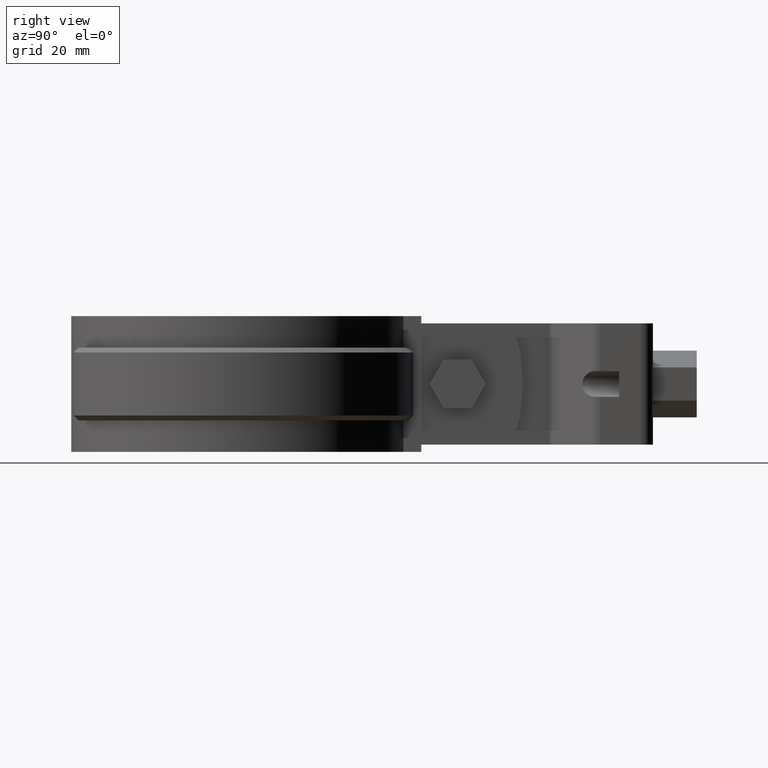
[diagram: clean part render]
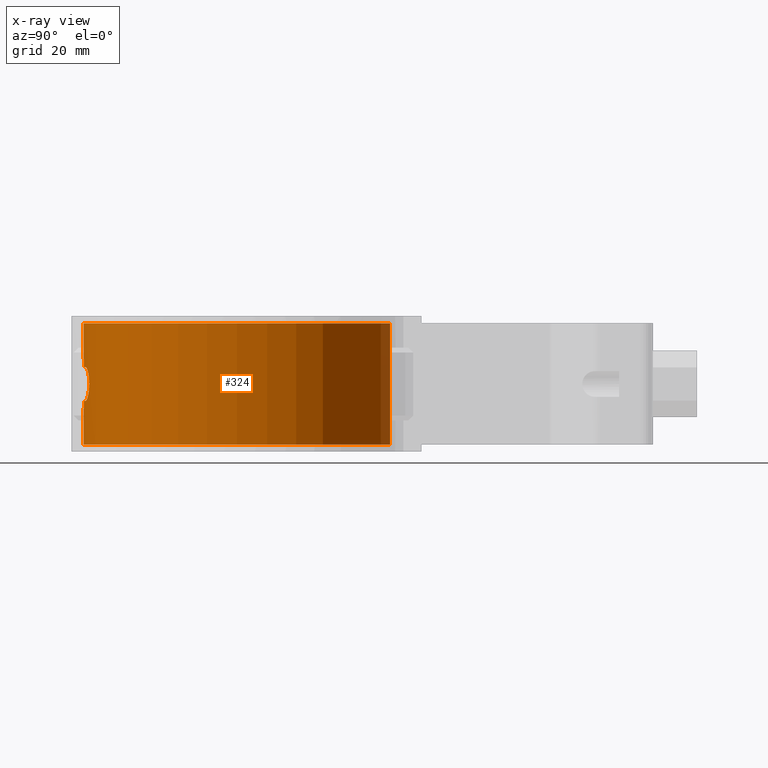
[diagram: x-ray — body ghosted, one internal face saturated and labeled with its STEP entity id]
A machine part, right view, then the same camera in x-ray: the body is ghosted and one INTERNAL B-rep face — a face not visible from any outside direction — is saturated and labeled: STEP entity #324.
In plain terms, the highlighted cylindrical surface (partial cylindrical patch) has radius 31.95 mm, axis along (0, 0, 1).
Its self-contained STEP definition (entity closure, byte-faithful):
#324 = ADVANCED_FACE( '', ( #559, #560 ), #561, .F. );
#559 = FACE_OUTER_BOUND( '', #1042, .T. );
#560 = FACE_BOUND( '', #1043, .T. );
#561 = CYLINDRICAL_SURFACE( '', #1044, 31.9500000000000 );
#1042 = EDGE_LOOP( '', ( #2131, #2132, #2133, #2134 ) );
#1043 = EDGE_LOOP( '', ( #2135, #2136, #2137, #2138, #2139, #2140, #2141, #2142, #2143, #2144, #2145, #2146, #2147, #2148, #2149, #2150 ) );
#1044 = AXIS2_PLACEMENT_3D( '', #2151, #2152, #2153 );
#2131 = ORIENTED_EDGE( '', *, *, #4825, .T. );
#2132 = ORIENTED_EDGE( '', *, *, #4826, .F. );
#2133 = ORIENTED_EDGE( '', *, *, #4827, .F. );
#2134 = ORIENTED_EDGE( '', *, *, #4773, .T. );
#2135 = ORIENTED_EDGE( '', *, *, #4828, .T. );
#2136 = ORIENTED_EDGE( '', *, *, #4829, .T. );
#2137 = ORIENTED_EDGE( '', *, *, #4830, .T. );
#2138 = ORIENTED_EDGE( '', *, *, #4831, .T. );
#2139 = ORIENTED_EDGE( '', *, *, #4832, .T. );
#2140 = ORIENTED_EDGE( '', *, *, #4833, .T. );
#2141 = ORIENTED_EDGE( '', *, *, #4823, .T. );
#2142 = ORIENTED_EDGE( '', *, *, #4820, .T. );
#2143 = ORIENTED_EDGE( '', *, *, #4822, .T. );
#2144 = ORIENTED_EDGE( '', *, *, #4783, .T. );
#2145 = ORIENTED_EDGE( '', *, *, #4786, .T. );
#2146 = ORIENTED_EDGE( '', *, *, #4834, .T. );
#2147 = ORIENTED_EDGE( '', *, *, #4835, .T. );
#2148 = ORIENTED_EDGE( '', *, *, #4836, .T. );
#2149 = ORIENTED_EDGE( '', *, *, #4837, .T. );
#2150 = ORIENTED_EDGE( '', *, *, #4838, .T. );
#2151 = CARTESIAN_POINT( '', ( 0.000000000000000, 0.000000000000000, 0.000000000000000 ) );
#2152 = DIRECTION( '', ( 0.000000000000000, 0.000000000000000, 1.00000000000000 ) );
#2153 = DIRECTION( '', ( 1.00000000000000, -6.12303176911189E-017, 0.000000000000000 ) );
#4773 = EDGE_CURVE( '', #5386, #5384, #5387, .T. );
#4783 = EDGE_CURVE( '', #5396, #5404, #5406, .T. );
#4786 = EDGE_CURVE( '', #5404, #5409, #5411, .T. );
#4820 = EDGE_CURVE( '', #5475, #5473, #5476, .T. );
#4822 = EDGE_CURVE( '', #5473, #5396, #5478, .T. );
#4823 = EDGE_CURVE( '', #5479, #5475, #5480, .T. );
#4825 = EDGE_CURVE( '', #5384, #5482, #5483, .T. );
#4826 = EDGE_CURVE( '', #5484, #5482, #5485, .T. );
#4827 = EDGE_CURVE( '', #5386, #5484, #5486, .T. );
#4828 = EDGE_CURVE( '', #5487, #5488, #5489, .T. );
#4829 = EDGE_CURVE( '', #5488, #5490, #5491, .T. );
#4830 = EDGE_CURVE( '', #5490, #5492, #5493, .T. );
#4831 = EDGE_CURVE( '', #5492, #5494, #5495, .T. );
#4832 = EDGE_CURVE( '', #5494, #5496, #5497, .T. );
#4833 = EDGE_CURVE( '', #5496, #5479, #5498, .T. );
#4834 = EDGE_CURVE( '', #5409, #5499, #5500, .T. );
#4835 = EDGE_CURVE( '', #5499, #5501, #5502, .T. );
#4836 = EDGE_CURVE( '', #5501, #5503, #5504, .T. );
#4837 = EDGE_CURVE( '', #5503, #5505, #5506, .T. );
#4838 = EDGE_CURVE( '', #5505, #5487, #5507, .T. );
#5384 = VERTEX_POINT( '', #6393 );
#5386 = VERTEX_POINT( '', #6395 );
#5387 = CIRCLE( '', #6396, 31.9500000000000 );
#5396 = VERTEX_POINT( '', #6414 );
#5404 = VERTEX_POINT( '', #6456 );
#5406 = B_SPLINE_CURVE_WITH_KNOTS( '', 3, ( #6459, #6460, #6461, #6462, #6463, #6464, #6465, #6466, #6467, #6468, #6469, #6470, #6471, #6472, #6473, #6474, #6475, #6476, #6477, #6478, #6479, #6480, #6481, #6482, #6483, #6484, #6485, #6486, #6487, #6488, #6489, #6490, #6491, #6492 ), .UNSPECIFIED., .F., .F., ( 4, 2, 2, 2, 2, 2, 2, 2, 2, 2, 2, 2, 2, 2, 2, 2, 4 ), ( 3.46944695195361E-018, 0.000691058954399839, 0.00138211790879968, 0.00207317686319951, 0.00276423581759935, 0.00345529477199918, 0.00414635372639901, 0.00483741268079885, 0.00552847163519868, 0.00621953058959852, 0.00691058954399835, 0.00760164849839818, 0.00829270745279802, 0.00898376640719785, 0.00967482536159769, 0.0103658843159975, 0.0110569432703974 ), .UNSPECIFIED. );
#5409 = VERTEX_POINT( '', #6495 );
#5411 = CIRCLE( '', #6498, 31.9500000000000 );
#5473 = VERTEX_POINT( '', #6872 );
#5475 = VERTEX_POINT( '', #6875 );
#5476 = B_SPLINE_CURVE_WITH_KNOTS( '', 3, ( #6876, #6877, #6878, #6879, #6880, #6881 ), .UNSPECIFIED., .F., .F., ( 4, 2, 4 ), ( 4.33680868994202E-019, 0.000335974106384815, 0.000671948212769629 ), .UNSPECIFIED. );
#5478 = CIRCLE( '', #6884, 31.9500000000000 );
#5479 = VERTEX_POINT( '', #6885 );
#5480 = ELLIPSE( '', #6886, 145.550148496892, 31.9500000000000 );
#5482 = VERTEX_POINT( '', #6889 );
#5483 = LINE( '', #6890, #6891 );
#5484 = VERTEX_POINT( '', #6892 );
#5485 = CIRCLE( '', #6893, 31.9500000000000 );
#5486 = LINE( '', #6894, #6895 );
#5487 = VERTEX_POINT( '', #6896 );
#5488 = VERTEX_POINT( '', #6897 );
#5489 = CIRCLE( '', #6898, 31.9500000000000 );
#5490 = VERTEX_POINT( '', #6899 );
#5491 = B_SPLINE_CURVE_WITH_KNOTS( '', 3, ( #6900, #6901, #6902, #6903, #6904, #6905, #6906, #6907, #6908, #6909, #6910, #6911, #6912, #6913, #6914, #6915, #6916, #6917, #6918, #6919, #6920, #6921, #6922, #6923, #6924, #6925, #6926, #6927, #6928, #6929, #6930, #6931, #6932, #6933 ), .UNSPECIFIED., .F., .F., ( 4, 2, 2, 2, 2, 2, 2, 2, 2, 2, 2, 2, 2, 2, 2, 2, 4 ), ( 0.000000000000000, 0.000691058954399833, 0.00138211790879967, 0.00207317686319950, 0.00276423581759933, 0.00345529477199916, 0.00414635372639900, 0.00483741268079883, 0.00552847163519866, 0.00621953058959849, 0.00691058954399832, 0.00760164849839815, 0.00829270745279798, 0.00898376640719781, 0.00967482536159764, 0.0103658843159975, 0.0110569432703973 ), .UNSPECIFIED. );
#5492 = VERTEX_POINT( '', #6934 );
#5493 = CIRCLE( '', #6935, 31.9500000000000 );
#5494 = VERTEX_POINT( '', #6936 );
#5495 = B_SPLINE_CURVE_WITH_KNOTS( '', 3, ( #6937, #6938, #6939, #6940, #6941, #6942 ), .UNSPECIFIED., .F., .F., ( 4, 2, 4 ), ( 8.20849171219253E-018, 0.000335970375242609, 0.000671940750485209 ), .UNSPECIFIED. );
#5496 = VERTEX_POINT( '', #6943 );
#5497 = ELLIPSE( '', #6944, 145.550074248421, 31.9500000000000 );
#5498 = B_SPLINE_CURVE_WITH_KNOTS( '', 3, ( #6945, #6946, #6947, #6948, #6949, #6950, #6951, #6952, #6953, #6954 ), .UNSPECIFIED., .F., .F., ( 4, 2, 2, 2, 4 ), ( 0.000000000000000, 0.000671592562954851, 0.00134318512590970, 0.00201477768886455, 0.00268637025181940 ), .UNSPECIFIED. );
#5499 = VERTEX_POINT( '', #6955 );
#5500 = B_SPLINE_CURVE_WITH_KNOTS( '', 3, ( #6956, #6957, #6958, #6959, #6960, #6961 ), .UNSPECIFIED., .F., .F., ( 4, 2, 4 ), ( 2.81892564846231E-018, 0.000335970375242659, 0.000671940750485314 ), .UNSPECIFIED. );
#5501 = VERTEX_POINT( '', #6962 );
#5502 = ELLIPSE( '', #6963, 145.550074248429, 31.9500000000000 );
#5503 = VERTEX_POINT( '', #6964 );
#5504 = B_SPLINE_CURVE_WITH_KNOTS( '', 3, ( #6965, #6966, #6967, #6968, #6969, #6970, #6971, #6972, #6973, #6974 ), .UNSPECIFIED., .F., .F., ( 4, 2, 2, 2, 4 ), ( 0.000000000000000, 0.000671592562954858, 0.00134318512590972, 0.00201477768886457, 0.00268637025181943 ), .UNSPECIFIED. );
#5505 = VERTEX_POINT( '', #6975 );
#5506 = ELLIPSE( '', #6976, 145.550148496923, 31.9500000000000 );
#5507 = B_SPLINE_CURVE_WITH_KNOTS( '', 3, ( #6977, #6978, #6979, #6980, #6981, #6982 ), .UNSPECIFIED., .F., .F., ( 4, 2, 4 ), ( 4.33680868994202E-019, 0.000335974106384860, 0.000671948212769720 ), .UNSPECIFIED. );
#6393 = CARTESIAN_POINT( '', ( 6.85622317596565, 31.2056838374254, 0.000000000000000 ) );
#6395 = CARTESIAN_POINT( '', ( -6.85622317596565, 31.2056838374254, 0.000000000000000 ) );
#6396 = AXIS2_PLACEMENT_3D( '', #9753, #9754, #9755 );
#6414 = CARTESIAN_POINT( '', ( -5.00000000000005, -31.5563385075011, -9.00000000000000 ) );
#6456 = CARTESIAN_POINT( '', ( -5.00000000000005, -31.5563385075011, -16.0000000000000 ) );
#6459 = CARTESIAN_POINT( '', ( -5.00000000000005, -31.5563385075011, -8.99999999999997 ) );
#6460 = CARTESIAN_POINT( '', ( -5.23082435471590, -31.5197651333974, -8.99999999999997 ) );
#6461 = CARTESIAN_POINT( '', ( -5.45740099431641, -31.4812710180263, -9.02260713359052 ) );
#6462 = CARTESIAN_POINT( '', ( -5.90252540393379, -31.4008573828662, -9.11076340273929 ) );
#6463 = CARTESIAN_POINT( '', ( -6.12322775057555, -31.3584895976071, -9.17729216631474 ) );
#6464 = CARTESIAN_POINT( '', ( -6.54497963023814, -31.2731838732231, -9.35118024176587 ) );
#6465 = CARTESIAN_POINT( '', ( -6.74493879792331, -31.2305282998837, -9.45750641570212 ) );
#6466 = CARTESIAN_POINT( '', ( -7.12349560628831, -31.1463626708603, -9.70852278729234 ) );
#6467 = CARTESIAN_POINT( '', ( -7.30327388090101, -31.1045384738789, -9.85486447686410 ) );
#6468 = CARTESIAN_POINT( '', ( -7.62647749208530, -31.0268748686551, -10.1754724157873 ) );
#6469 = CARTESIAN_POINT( '', ( -7.77172877808563, -30.9906490826262, -10.3505232519596 ) );
#6470 = CARTESIAN_POINT( '', ( -8.02881034475353, -30.9250433016768, -10.7310911258212 ) );
#6471 = CARTESIAN_POINT( '', ( -8.13944714984437, -30.8959592502532, -10.9359163513138 ) );
#6472 = CARTESIAN_POINT( '', ( -8.31654539734070, -30.8487596274532, -11.3585041856705 ) );
#6473 = CARTESIAN_POINT( '', ( -8.38456336319786, -30.8302431254002, -11.5784729116417 ) );
#6474 = CARTESIAN_POINT( '', ( -8.47695894340388, -30.8049664994885, -12.0360626766867 ) );
#6475 = CARTESIAN_POINT( '', ( -8.49975084488296, -30.7986482761930, -12.2657328020545 ) );
#6476 = CARTESIAN_POINT( '', ( -8.50024513194291, -30.7985118595463, -12.7267622380427 ) );
#6477 = CARTESIAN_POINT( '', ( -8.47723598761938, -30.8048890747898, -12.9608200322487 ) );
#6478 = CARTESIAN_POINT( '', ( -8.38632453918907, -30.8297629187006, -13.4145115258994 ) );
#6479 = CARTESIAN_POINT( '', ( -8.31911636750167, -30.8480670597381, -13.6343045090072 ) );
#6480 = CARTESIAN_POINT( '', ( -8.14159458149678, -30.8953940924642, -14.0599883543417 ) );
#6481 = CARTESIAN_POINT( '', ( -8.03087726938537, -30.9245022710997, -14.2652047870432 ) );
#6482 = CARTESIAN_POINT( '', ( -7.77576953824425, -30.9896311452605, -14.6441241645092 ) );
#6483 = CARTESIAN_POINT( '', ( -7.63013060726717, -31.0259858186443, -14.8206401144173 ) );
#6484 = CARTESIAN_POINT( '', ( -7.30363732587390, -31.1044622347787, -15.1450354672039 ) );
#6485 = CARTESIAN_POINT( '', ( -7.12736355458527, -31.1454750556618, -15.2885063780422 ) );
#6486 = CARTESIAN_POINT( '', ( -6.74967310139176, -31.2295027290931, -15.5397512319310 ) );
#6487 = CARTESIAN_POINT( '', ( -6.54588777106786, -31.2729911935889, -15.6483474673443 ) );
#6488 = CARTESIAN_POINT( '', ( -6.12488272248300, -31.3581637941627, -15.8221227606050 ) );
#6489 = CARTESIAN_POINT( '', ( -5.90802429860369, -31.3998285083849, -15.8878204821735 ) );
#6490 = CARTESIAN_POINT( '', ( -5.46147451145804, -31.4805698428343, -15.9769062428491 ) );
#6491 = CARTESIAN_POINT( '', ( -5.23082732099575, -31.5197646633999, -16.0000000000000 ) );
#6492 = CARTESIAN_POINT( '', ( -5.00000000000006, -31.5563385075011, -16.0000000000000 ) );
#6495 = CARTESIAN_POINT( '', ( -1.65000000000006, -31.9073659207400, -16.0000000000000 ) );
#6498 = AXIS2_PLACEMENT_3D( '', #9766, #9767, #9768 );
#6872 = CARTESIAN_POINT( '', ( -1.65000000000003, -31.9073659207400, -9.00000000000000 ) );
#6875 = CARTESIAN_POINT( '', ( -1.16219512100914, -31.9288553271285, -8.60975609337373 ) );
#6876 = CARTESIAN_POINT( '', ( -1.16219512100916, -31.9288553271285, -8.60975609337372 ) );
#6877 = CARTESIAN_POINT( '', ( -1.18713187267133, -31.9279476412494, -8.72058610520340 ) );
#6878 = CARTESIAN_POINT( '', ( -1.24908222759633, -31.9256976399462, -8.81961539303909 ) );
#6879 = CARTESIAN_POINT( '', ( -1.42642258605681, -31.9182658491114, -8.96141326343218 ) );
#6880 = CARTESIAN_POINT( '', ( -1.53655064222882, -31.9132326363061, -8.99999999999994 ) );
#6881 = CARTESIAN_POINT( '', ( -1.65000000000003, -31.9073659207400, -8.99999999999994 ) );
#6884 = AXIS2_PLACEMENT_3D( '', #9799, #9800, #9801 );
#6885 = CARTESIAN_POINT( '', ( -0.975610000000026, -31.9351011447889, -7.78048800000004 ) );
#6886 = AXIS2_PLACEMENT_3D( '', #9802, #9803, #9804 );
#6889 = CARTESIAN_POINT( '', ( 6.85622317596565, 31.2056838374254, -25.0000000000000 ) );
#6890 = CARTESIAN_POINT( '', ( 6.85622317596565, 31.2056838374254, 0.000000000000000 ) );
#6891 = VECTOR( '', #9806, 1000.00000000000 );
#6892 = CARTESIAN_POINT( '', ( -6.85622317596565, 31.2056838374254, -25.0000000000000 ) );
#6893 = AXIS2_PLACEMENT_3D( '', #9807, #9808, #9809 );
#6894 = CARTESIAN_POINT( '', ( -6.85622317596565, 31.2056838374254, 0.000000000000000 ) );
#6895 = VECTOR( '', #9810, 1000.00000000000 );
#6896 = CARTESIAN_POINT( '', ( 1.65000000000001, -31.9073659207400, -16.0000000000000 ) );
#6897 = CARTESIAN_POINT( '', ( 4.99999999999994, -31.5563385075011, -16.0000000000000 ) );
#6898 = AXIS2_PLACEMENT_3D( '', #9811, #9812, #9813 );
#6899 = CARTESIAN_POINT( '', ( 5.00000000000000, -31.5563385075011, -9.00000000000000 ) );
#6900 = CARTESIAN_POINT( '', ( 4.99999999999994, -31.5563385075011, -16.0000000000000 ) );
#6901 = CARTESIAN_POINT( '', ( 5.23082435471579, -31.5197651333974, -16.0000000000000 ) );
#6902 = CARTESIAN_POINT( '', ( 5.45740099431629, -31.4812710180263, -15.9773928664094 ) );
#6903 = CARTESIAN_POINT( '', ( 5.90252540393367, -31.4008573828663, -15.8892365972607 ) );
#6904 = CARTESIAN_POINT( '', ( 6.12322775057544, -31.3584895976071, -15.8227078336852 ) );
#6905 = CARTESIAN_POINT( '', ( 6.54497963023802, -31.2731838732231, -15.6488197582341 ) );
#6906 = CARTESIAN_POINT( '', ( 6.74493879792320, -31.2305282998837, -15.5424935842978 ) );
#6907 = CARTESIAN_POINT( '', ( 7.12349560628819, -31.1463626708603, -15.2914772127076 ) );
#6908 = CARTESIAN_POINT( '', ( 7.30327388090088, -31.1045384738789, -15.1451355231359 ) );
#6909 = CARTESIAN_POINT( '', ( 7.62647749208518, -31.0268748686551, -14.8245275842126 ) );
#6910 = CARTESIAN_POINT( '', ( 7.77172877808550, -30.9906490826262, -14.6494767480404 ) );
#6911 = CARTESIAN_POINT( '', ( 8.02881034475341, -30.9250433016768, -14.2689088741787 ) );
#6912 = CARTESIAN_POINT( '', ( 8.13944714984424, -30.8959592502532, -14.0640836486862 ) );
#6913 = CARTESIAN_POINT( '', ( 8.31654539734057, -30.8487596274532, -13.6414958143295 ) );
#6914 = CARTESIAN_POINT( '', ( 8.38456336319774, -30.8302431254002, -13.4215270883583 ) );
#6915 = CARTESIAN_POINT( '', ( 8.47695894340376, -30.8049664994885, -12.9639373233133 ) );
#6916 = CARTESIAN_POINT( '', ( 8.49975084488284, -30.7986482761930, -12.7342671979455 ) );
#6917 = CARTESIAN_POINT( '', ( 8.50024513194281, -30.7985118595463, -12.2732377619573 ) );
#6918 = CARTESIAN_POINT( '', ( 8.47723598761927, -30.8048890747898, -12.0391799677512 ) );
#6919 = CARTESIAN_POINT( '', ( 8.38632453918897, -30.8297629187006, -11.5854884741005 ) );
#6920 = CARTESIAN_POINT( '', ( 8.31911636750158, -30.8480670597381, -11.3656954909928 ) );
#6921 = CARTESIAN_POINT( '', ( 8.14159458149669, -30.8953940924643, -10.9400116456583 ) );
#6922 = CARTESIAN_POINT( '', ( 8.03087726938527, -30.9245022710998, -10.7347952129568 ) );
#6923 = CARTESIAN_POINT( '', ( 7.77576953824417, -30.9896311452605, -10.3558758354908 ) );
#6924 = CARTESIAN_POINT( '', ( 7.63013060726708, -31.0259858186443, -10.1793598855827 ) );
#6925 = CARTESIAN_POINT( '', ( 7.30363732587383, -31.1044622347787, -9.85496453279603 ) );
#6926 = CARTESIAN_POINT( '', ( 7.12736355458520, -31.1454750556618, -9.71149362195774 ) );
#6927 = CARTESIAN_POINT( '', ( 6.74967310139168, -31.2295027290931, -9.46024876806898 ) );
#6928 = CARTESIAN_POINT( '', ( 6.54588777106779, -31.2729911935889, -9.35165253265566 ) );
#6929 = CARTESIAN_POINT( '', ( 6.12488272248293, -31.3581637941627, -9.17787723939498 ) );
#6930 = CARTESIAN_POINT( '', ( 5.90802429860362, -31.3998285083849, -9.11217951782647 ) );
#6931 = CARTESIAN_POINT( '', ( 5.46147451145798, -31.4805698428343, -9.02309375715080 ) );
#6932 = CARTESIAN_POINT( '', ( 5.23082732099569, -31.5197646633999, -8.99999999999997 ) );
#6933 = CARTESIAN_POINT( '', ( 5.00000000000000, -31.5563385075011, -8.99999999999997 ) );
#6934 = CARTESIAN_POINT( '', ( 1.64999999999995, -31.9073659207400, -9.00000000000000 ) );
#6935 = AXIS2_PLACEMENT_3D( '', #9814, #9815, #9816 );
#6936 = CARTESIAN_POINT( '', ( 1.16219499999998, -31.9288553315332, -8.60975599999999 ) );
#6937 = CARTESIAN_POINT( '', ( 1.64999999999995, -31.9073659207400, -8.99999999999995 ) );
#6938 = CARTESIAN_POINT( '', ( 1.53655061302657, -31.9132326378163, -9.00000000048687 ) );
#6939 = CARTESIAN_POINT( '', ( 1.42642217051770, -31.9182658618819, -8.96141231679775 ) );
#6940 = CARTESIAN_POINT( '', ( 1.24908598071732, -31.9256974873078, -8.81961908034414 ) );
#6941 = CARTESIAN_POINT( '', ( 1.18713175896273, -31.9279476454830, -8.72058604205554 ) );
#6942 = CARTESIAN_POINT( '', ( 1.16219499999999, -31.9288553315332, -8.60975599999999 ) );
#6943 = CARTESIAN_POINT( '', ( 0.975609757981812, -31.9351011521825, -7.78048781325256 ) );
#6944 = AXIS2_PLACEMENT_3D( '', #9817, #9818, #9819 );
#6945 = CARTESIAN_POINT( '', ( 0.975609757981814, -31.9351011521825, -7.78048781325255 ) );
#6946 = CARTESIAN_POINT( '', ( 0.925762131807933, -31.9366239853270, -7.55894289816456 ) );
#6947 = CARTESIAN_POINT( '', ( 0.802004281958660, -31.9404248091216, -7.36098149685959 ) );
#6948 = CARTESIAN_POINT( '', ( 0.447401219951478, -31.9473595153624, -7.07729329333945 ) );
#6949 = CARTESIAN_POINT( '', ( 0.227087531318243, -31.9500000050751, -6.99999985712679 ) );
#6950 = CARTESIAN_POINT( '', ( -0.227088959384784, -31.9499999949249, -7.00000013600622 ) );
#6951 = CARTESIAN_POINT( '', ( -0.447420557608795, -31.9473591883756, -7.07730524544403 ) );
#6952 = CARTESIAN_POINT( '', ( -0.802003382571734, -31.9404247755224, -7.36098397583481 ) );
#6953 = CARTESIAN_POINT( '', ( -0.925762415293187, -31.9366239770447, -7.55894307119159 ) );
#6954 = CARTESIAN_POINT( '', ( -0.975610000000026, -31.9351011447889, -7.78048800000004 ) );
#6955 = CARTESIAN_POINT( '', ( -1.16219500000000, -31.9288553315332, -16.3902440000000 ) );
#6956 = CARTESIAN_POINT( '', ( -1.65000000000006, -31.9073659207400, -16.0000000000000 ) );
#6957 = CARTESIAN_POINT( '', ( -1.53655061302666, -31.9132326378163, -15.9999999995130 ) );
#6958 = CARTESIAN_POINT( '', ( -1.42642217051778, -31.9182658618818, -16.0385876832022 ) );
#6959 = CARTESIAN_POINT( '', ( -1.24908598071736, -31.9256974873078, -16.1803809196558 ) );
#6960 = CARTESIAN_POINT( '', ( -1.18713175896275, -31.9279476454830, -16.2794139579444 ) );
#6961 = CARTESIAN_POINT( '', ( -1.16219500000000, -31.9288553315332, -16.3902440000000 ) );
#6962 = CARTESIAN_POINT( '', ( -0.975609757981852, -31.9351011521825, -17.2195121867475 ) );
#6963 = AXIS2_PLACEMENT_3D( '', #9820, #9821, #9822 );
#6964 = CARTESIAN_POINT( '', ( 0.975610000000013, -31.9351011447889, -17.2195120000000 ) );
#6965 = CARTESIAN_POINT( '', ( -0.975609757981852, -31.9351011521825, -17.2195121867475 ) );
#6966 = CARTESIAN_POINT( '', ( -0.925762131807969, -31.9366239853270, -17.4410571018355 ) );
#6967 = CARTESIAN_POINT( '', ( -0.802004281958694, -31.9404248091216, -17.6390185031404 ) );
#6968 = CARTESIAN_POINT( '', ( -0.447401219951505, -31.9473595153624, -17.9227067066606 ) );
#6969 = CARTESIAN_POINT( '', ( -0.227087531318267, -31.9500000050751, -18.0000001428732 ) );
#6970 = CARTESIAN_POINT( '', ( 0.227088959384765, -31.9499999949249, -17.9999998639938 ) );
#6971 = CARTESIAN_POINT( '', ( 0.447420557608778, -31.9473591883756, -17.9226947545560 ) );
#6972 = CARTESIAN_POINT( '', ( 0.802003382571721, -31.9404247755224, -17.6390160241652 ) );
#6973 = CARTESIAN_POINT( '', ( 0.925762415293174, -31.9366239770447, -17.4410569288084 ) );
#6974 = CARTESIAN_POINT( '', ( 0.975610000000014, -31.9351011447889, -17.2195120000000 ) );
#6975 = CARTESIAN_POINT( '', ( 1.16219512100908, -31.9288553271285, -16.3902439066263 ) );
#6976 = AXIS2_PLACEMENT_3D( '', #9823, #9824, #9825 );
#6977 = CARTESIAN_POINT( '', ( 1.16219512100909, -31.9288553271285, -16.3902439066263 ) );
#6978 = CARTESIAN_POINT( '', ( 1.18713187267125, -31.9279476412494, -16.2794138947966 ) );
#6979 = CARTESIAN_POINT( '', ( 1.24908222759625, -31.9256976399462, -16.1803846069609 ) );
#6980 = CARTESIAN_POINT( '', ( 1.42642258605674, -31.9182658491114, -16.0385867365678 ) );
#6981 = CARTESIAN_POINT( '', ( 1.53655064222877, -31.9132326363061, -16.0000000000000 ) );
#6982 = CARTESIAN_POINT( '', ( 1.65000000000001, -31.9073659207400, -16.0000000000000 ) );
#9753 = CARTESIAN_POINT( '', ( 0.000000000000000, 0.000000000000000, 0.000000000000000 ) );
#9754 = DIRECTION( '', ( 0.000000000000000, 0.000000000000000, 1.00000000000000 ) );
#9755 = DIRECTION( '', ( 1.00000000000000, -6.12303176911189E-017, 0.000000000000000 ) );
#9766 = CARTESIAN_POINT( '', ( 0.000000000000000, 0.000000000000000, -16.0000000000000 ) );
#9767 = DIRECTION( '', ( -6.12303176911189E-017, 0.000000000000000, 1.00000000000000 ) );
#9768 = DIRECTION( '', ( 1.00000000000000, 0.000000000000000, 6.12303176911189E-017 ) );
#9799 = CARTESIAN_POINT( '', ( 0.000000000000000, 0.000000000000000, -9.00000000000000 ) );
#9800 = DIRECTION( '', ( 6.12303176911189E-017, 0.000000000000000, -1.00000000000000 ) );
#9801 = DIRECTION( '', ( -1.00000000000000, 0.000000000000000, -6.12303176911189E-017 ) );
#9802 = CARTESIAN_POINT( '', ( 0.000000000000000, 0.000000000000000, -3.44443890776446 ) );
#9803 = DIRECTION( '', ( 0.975609806487711, 0.000000000000000, -0.219511971165610 ) );
#9804 = DIRECTION( '', ( -0.219511971165610, 0.000000000000000, -0.975609806487711 ) );
#9806 = DIRECTION( '', ( 0.000000000000000, 0.000000000000000, -1.00000000000000 ) );
#9807 = CARTESIAN_POINT( '', ( 0.000000000000000, 0.000000000000000, -25.0000000000000 ) );
#9808 = DIRECTION( '', ( 0.000000000000000, 0.000000000000000, 1.00000000000000 ) );
#9809 = DIRECTION( '', ( 1.00000000000000, -6.12303176911189E-017, 0.000000000000000 ) );
#9810 = DIRECTION( '', ( 0.000000000000000, 0.000000000000000, -1.00000000000000 ) );
#9811 = CARTESIAN_POINT( '', ( 0.000000000000000, 0.000000000000000, -16.0000000000000 ) );
#9812 = DIRECTION( '', ( -6.12303176911189E-017, 0.000000000000000, 1.00000000000000 ) );
#9813 = DIRECTION( '', ( 1.00000000000000, 0.000000000000000, 6.12303176911189E-017 ) );
#9814 = CARTESIAN_POINT( '', ( 0.000000000000000, 0.000000000000000, -9.00000000000000 ) );
#9815 = DIRECTION( '', ( 6.12303176911189E-017, 0.000000000000000, -1.00000000000000 ) );
#9816 = DIRECTION( '', ( -1.00000000000000, 0.000000000000000, -6.12303176911189E-017 ) );
#9817 = CARTESIAN_POINT( '', ( 0.000000000000000, 0.000000000000000, -3.44444212055030 ) );
#9818 = DIRECTION( '', ( -0.975609781292647, 0.000000000000000, -0.219512083143762 ) );
#9819 = DIRECTION( '', ( 0.219512083143762, 0.000000000000000, -0.975609781292647 ) );
#9820 = CARTESIAN_POINT( '', ( 0.000000000000000, 0.000000000000000, -21.5555578794501 ) );
#9821 = DIRECTION( '', ( 0.975609781292650, 0.000000000000000, 0.219512083143750 ) );
#9822 = DIRECTION( '', ( 0.219512083143750, 0.000000000000000, -0.975609781292650 ) );
#9823 = CARTESIAN_POINT( '', ( 0.000000000000000, 0.000000000000000, -21.5555610922364 ) );
#9824 = DIRECTION( '', ( -0.975609806487721, 0.000000000000000, 0.219511971165564 ) );
#9825 = DIRECTION( '', ( -0.219511971165564, 0.000000000000000, -0.975609806487721 ) );